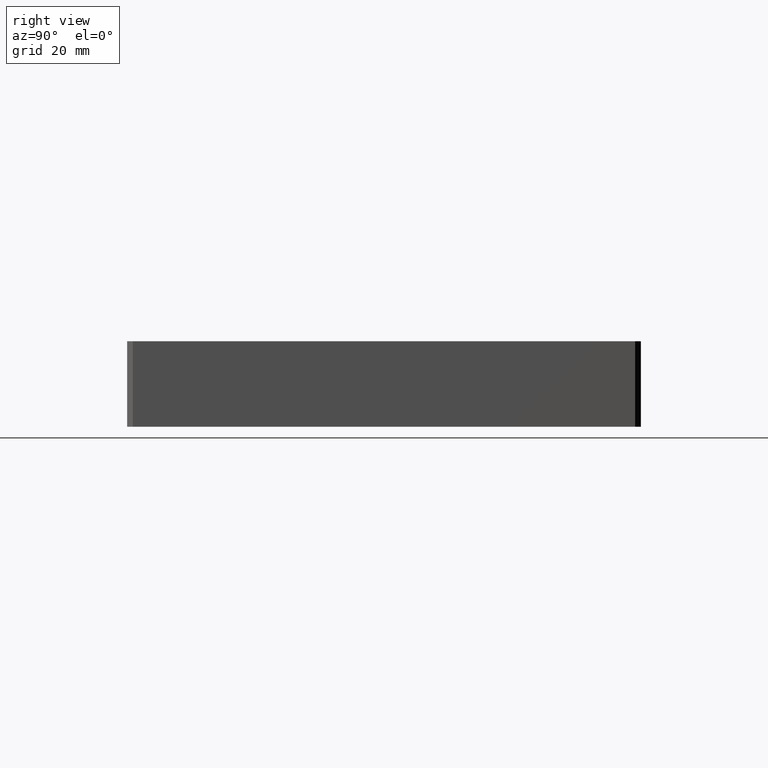
[diagram: clean part render]
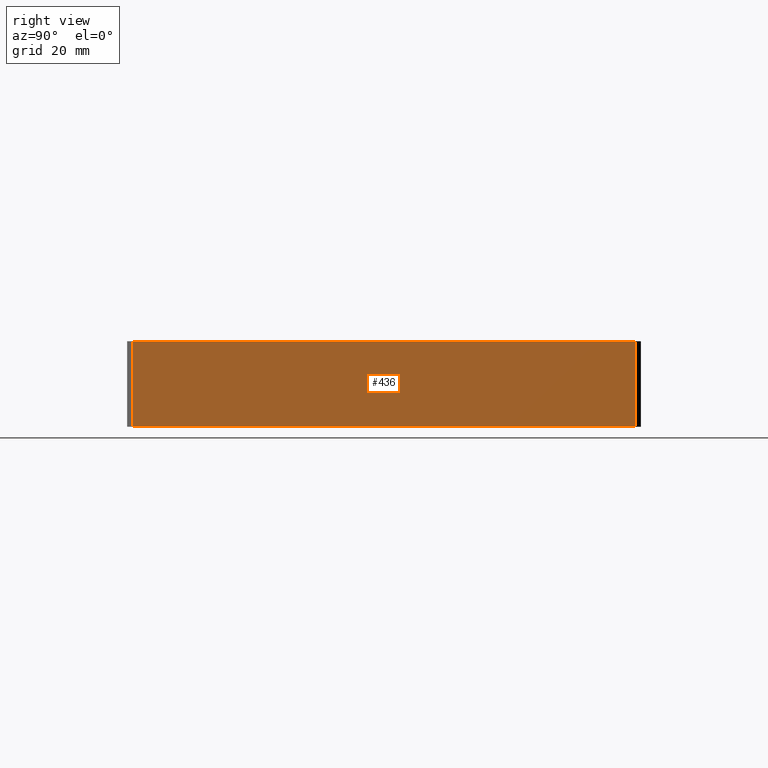
[diagram: same view with one face highlighted and labeled with its STEP entity id]
A machine part, right view. The second image highlights one B-rep face of the part: STEP entity #436.
In plain terms, the highlighted planar face has unit normal (-1, 0, 0).
Its self-contained STEP definition (entity closure, byte-faithful):
#23=LINE('',#671,#47);
#25=LINE('',#675,#49);
#26=LINE('',#677,#50);
#27=LINE('',#678,#51);
#47=VECTOR('',#536,15.);
#49=VECTOR('',#540,87.999999999648);
#50=VECTOR('',#541,15.);
#51=VECTOR('',#542,87.999999999648);
#66=PLANE('',#467);
#116=FACE_OUTER_BOUND('',#144,.T.);
#144=EDGE_LOOP('',(#333,#334,#335,#336));
#235=VERTEX_POINT('',#668);
#236=VERTEX_POINT('',#670);
#237=VERTEX_POINT('',#674);
#238=VERTEX_POINT('',#676);
#279=EDGE_CURVE('',#236,#235,#23,.T.);
#281=EDGE_CURVE('',#235,#237,#25,.T.);
#282=EDGE_CURVE('',#238,#237,#26,.T.);
#283=EDGE_CURVE('',#236,#238,#27,.T.);
#333=ORIENTED_EDGE('',*,*,#279,.T.);
#334=ORIENTED_EDGE('',*,*,#281,.T.);
#335=ORIENTED_EDGE('',*,*,#282,.F.);
#336=ORIENTED_EDGE('',*,*,#283,.F.);
#436=ADVANCED_FACE('',(#116),#66,.F.);
#467=AXIS2_PLACEMENT_3D('',#673,#538,#539);
#536=DIRECTION('',(0.,0.,-1.));
#538=DIRECTION('center_axis',(-1.,0.,0.));
#539=DIRECTION('ref_axis',(0.,0.,1.));
#540=DIRECTION('',(0.,1.,0.));
#541=DIRECTION('',(0.,0.,-1.));
#542=DIRECTION('',(0.,1.,0.));
#668=CARTESIAN_POINT('',(44.9999999998199,-43.999999999824,-15.));
#670=CARTESIAN_POINT('',(44.9999999998199,-43.999999999824,0.));
#671=CARTESIAN_POINT('',(44.9999999998199,-43.999999999824,0.));
#673=CARTESIAN_POINT('Origin',(44.9999999998199,-43.999999999824,0.));
#674=CARTESIAN_POINT('',(44.9999999998199,43.999999999824,-15.));
#675=CARTESIAN_POINT('',(44.9999999998199,-43.999999999824,-15.));
#676=CARTESIAN_POINT('',(44.9999999998199,43.999999999824,0.));
#677=CARTESIAN_POINT('',(44.9999999998199,43.999999999824,0.));
#678=CARTESIAN_POINT('',(44.9999999998199,-43.999999999824,0.));